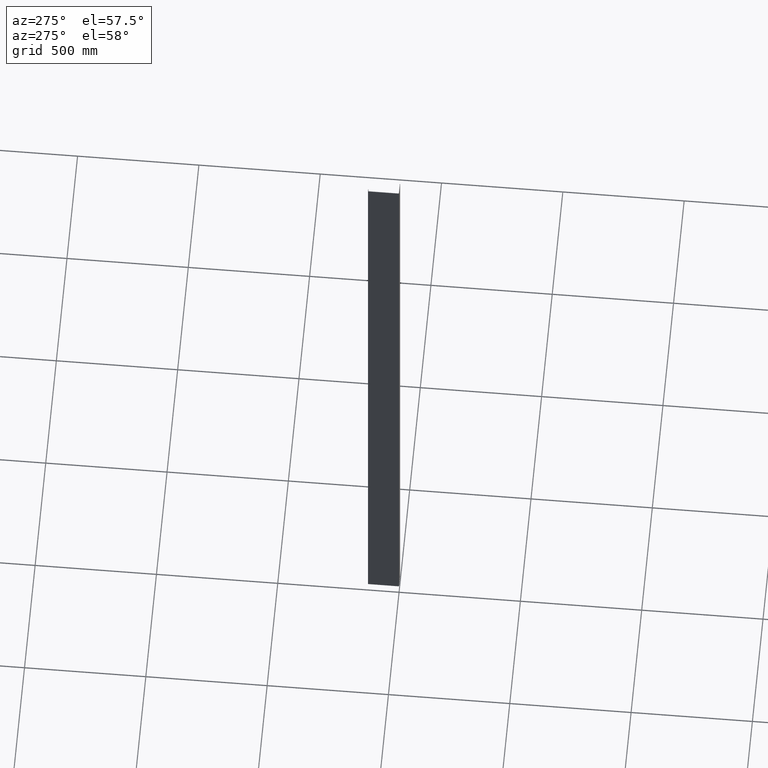
[diagram: clean part render]
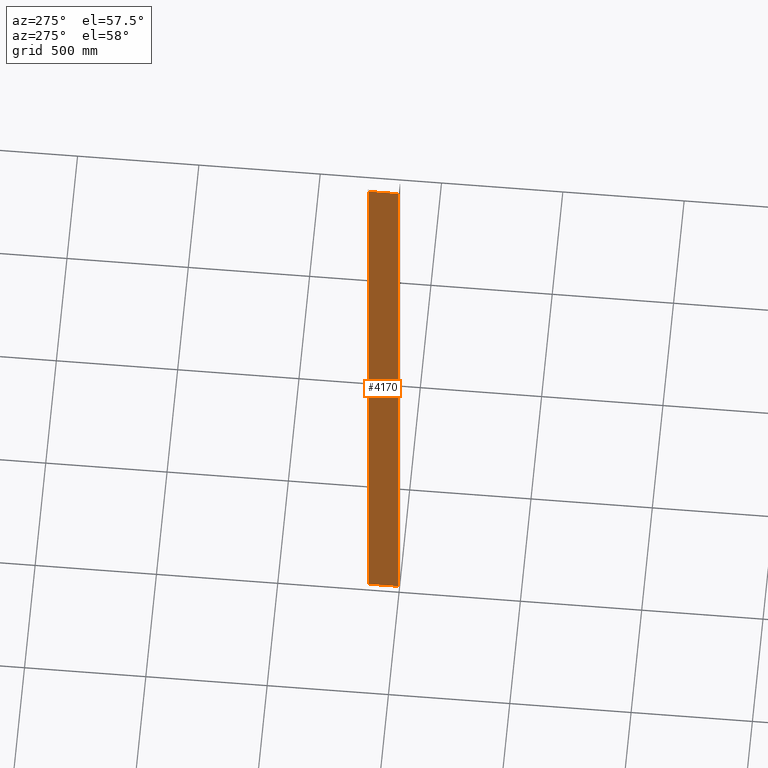
[diagram: same view with one face highlighted and labeled with its STEP entity id]
A machine part, auxiliary view. The second image highlights one B-rep face of the part: STEP entity #4170.
In plain terms, the highlighted planar face has unit normal (1, 0, -0).
Its self-contained STEP definition (entity closure, byte-faithful):
#43 = EDGE_CURVE ( 'NONE', #2706, #12678, #9397, .T. ) ;
#646 = PLANE ( 'NONE',  #6785 ) ;
#812 = FACE_OUTER_BOUND ( 'NONE', #4571, .T. ) ;
#1658 = ORIENTED_EDGE ( 'NONE', *, *, #4256, .T. ) ;
#1663 = DIRECTION ( 'NONE',  ( 1.392233929354566900E-017, -1.000000000000000000, 0.0000000000000000000 ) ) ;
#1682 = CARTESIAN_POINT ( 'NONE',  ( 0.0000000000000000000, 1.699999999910773100, -1500.000000000000000 ) ) ;
#1920 = ORIENTED_EDGE ( 'NONE', *, *, #12888, .T. ) ;
#2706 = VERTEX_POINT ( 'NONE', #7004 ) ;
#3264 = VECTOR ( 'NONE', #3415, 1000.000000000000000 ) ;
#3415 = DIRECTION ( 'NONE',  ( -0.0000000000000000000, -0.0000000000000000000, -1.000000000000000000 ) ) ;
#3531 = EDGE_CURVE ( 'NONE', #9729, #2706, #11357, .T. ) ;
#3618 = DIRECTION ( 'NONE',  ( -0.0000000000000000000, -0.0000000000000000000, -1.000000000000000000 ) ) ;
#3629 = ORIENTED_EDGE ( 'NONE', *, *, #3531, .F. ) ;
#4170 = ADVANCED_FACE ( 'NONE', ( #812 ), #646, .F. ) ;
#4256 = EDGE_CURVE ( 'NONE', #13855, #12678, #9679, .T. ) ;
#4534 = CARTESIAN_POINT ( 'NONE',  ( -1.734723475976807100E-015, 126.2999999999838100, 1500.000000000000000 ) ) ;
#4571 = EDGE_LOOP ( 'NONE', ( #1658, #9753, #3629, #1920 ) ) ;
#5950 = VECTOR ( 'NONE', #12291, 1000.000000000000000 ) ;
#6231 = VECTOR ( 'NONE', #3618, 1000.000000000000000 ) ;
#6565 = LINE ( 'NONE', #4534, #3264 ) ;
#6785 = AXIS2_PLACEMENT_3D ( 'NONE', #13650, #11221, #12431 ) ;
#7004 = CARTESIAN_POINT ( 'NONE',  ( 0.0000000000000000000, 1.699999999910773100, 1500.000000000000000 ) ) ;
#8158 = CARTESIAN_POINT ( 'NONE',  ( -1.734723475976807100E-015, 126.2999999999838100, 1500.000000000000000 ) ) ;
#9397 = LINE ( 'NONE', #10520, #6231 ) ;
#9679 = LINE ( 'NONE', #12931, #13780 ) ;
#9729 = VERTEX_POINT ( 'NONE', #8158 ) ;
#9753 = ORIENTED_EDGE ( 'NONE', *, *, #43, .F. ) ;
#10168 = CARTESIAN_POINT ( 'NONE',  ( -1.734723475976807100E-015, 126.2999999999838100, -1500.000000000000000 ) ) ;
#10520 = CARTESIAN_POINT ( 'NONE',  ( 0.0000000000000000000, 1.699999999910773100, 1500.000000000000000 ) ) ;
#11093 = CARTESIAN_POINT ( 'NONE',  ( -1.734723475976807100E-015, 126.2999999999838100, 1500.000000000000000 ) ) ;
#11221 = DIRECTION ( 'NONE',  ( 1.000000000000000000, 1.392233929354566600E-017, -0.0000000000000000000 ) ) ;
#11357 = LINE ( 'NONE', #11093, #5950 ) ;
#12291 = DIRECTION ( 'NONE',  ( 1.392233929354566900E-017, -1.000000000000000000, 0.0000000000000000000 ) ) ;
#12431 = DIRECTION ( 'NONE',  ( -1.392233929354566600E-017, 1.000000000000000000, 0.0000000000000000000 ) ) ;
#12678 = VERTEX_POINT ( 'NONE', #1682 ) ;
#12888 = EDGE_CURVE ( 'NONE', #9729, #13855, #6565, .T. ) ;
#12931 = CARTESIAN_POINT ( 'NONE',  ( -1.734723475976807100E-015, 126.2999999999838100, -1500.000000000000000 ) ) ;
#13650 = CARTESIAN_POINT ( 'NONE',  ( -1.734723475976807100E-015, 126.2999999999838100, 1500.000000000000000 ) ) ;
#13780 = VECTOR ( 'NONE', #1663, 1000.000000000000000 ) ;
#13855 = VERTEX_POINT ( 'NONE', #10168 ) ;